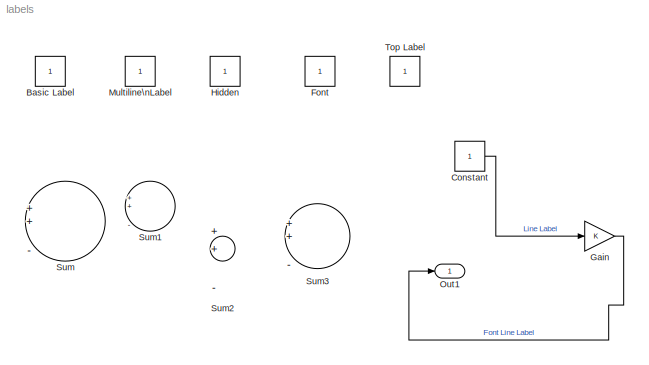
MODEL labels
KIND model
BLOCK [Constant] Basic Label
  SID = 1
BLOCK [Constant] Constant
  SID = 14
BLOCK [Constant] Font
  SID = 4
BLOCK [Gain] Gain
  OutDataTypeStr = Inherit: Inherit via internal rule
  ParamDataTypeStr = Inherit: Inherit via internal rule
  SID = 15
  SaturateOnIntegerOverflow = off
BLOCK [Constant] Hidden
  SID = 3
BLOCK [Constant] Multiline\nLabel
  SID = 2
BLOCK [Outport] Out1
  IconDisplay = Port number
  SID = 16
BLOCK [Sum] Sum
  IconShape = round
  InputSameDT = off
  Inputs = |++||-+-
  OutDataTypeStr = Inherit: Inherit via internal rule
  Ports = [5, 1]
  SID = 10
  SaturateOnIntegerOverflow = off
BLOCK [Sum] Sum1
  IconShape = round
  InputSameDT = off
  Inputs = |++||-+-
  OutDataTypeStr = Inherit: Inherit via internal rule
  Ports = [5, 1]
  SID = 11
  SaturateOnIntegerOverflow = off
BLOCK [Sum] Sum2
  InputSameDT = off
  Inputs = |++||-+-
  OutDataTypeStr = Inherit: Inherit via internal rule
  Ports = [5, 1]
  SID = 12
  SaturateOnIntegerOverflow = off
BLOCK [Sum] Sum3
  InputSameDT = off
  Inputs = |++||-+-
  OutDataTypeStr = Inherit: Inherit via internal rule
  Ports = [5, 1]
  SID = 13
  SaturateOnIntegerOverflow = off
BLOCK [Constant] Top Label
  SID = 5
LINE Constant:1 -> Gain:1
LINE Gain:1 -> Out1:1
